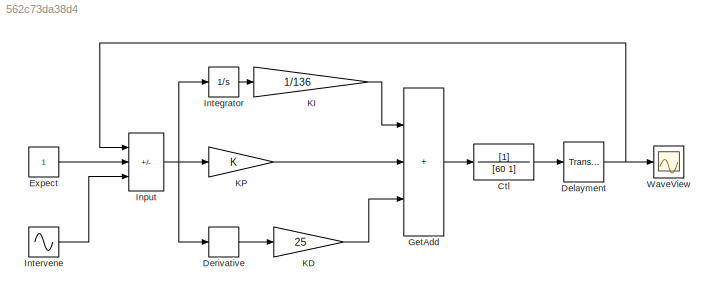
MODEL slx_562c73da38d4
KIND model
CONFIG AbsTol = auto
CONFIG EnableMultiTasking = off
CONFIG FixedStep = auto
CONFIG MaxStep = auto
CONFIG MinStep = auto
CONFIG RelTol = 1e-3
CONFIG SampleTimeConstraint = Unconstrained
CONFIG SolverName = VariableStepAuto
CONFIG StartTime = 0.0
CONFIG StopTime = 2000
BLOCK [TransferFcn] Ctl
  Denominator = [60 1]
BLOCK [TransportDelay] Delayment
  DelayTime = 80
BLOCK [Derivative] Derivative
BLOCK [Constant] Expect
BLOCK [Sum] GetAdd
  IconShape = rectangular
  Inputs = +++
BLOCK [Sum] Input
  IconShape = rectangular
  Inputs = -++
BLOCK [Integrator] Integrator
BLOCK [Sin] Intervene
  Amplitude = 0.05
  Frequency = 500
  SampleTime = 0
BLOCK [Gain] KD
  Gain = 25
BLOCK [Gain] KI
  Gain = 1/136
BLOCK [Gain] KP
BLOCK [Scope] WaveView
  Floating = off
  NumInputPorts = 1
  ScopeSpecificationString = Simulink.scopes.TimeScopeBlockCfg('CurrentConfiguration', extmgr.ConfigurationSet(extmgr.Configuration('Core','General UI',true),extmgr.Configuration('Core','Source UI',true),extmgr.Configuration('Sources','WiredSimulink',true),extmgr.Configuration('Visuals','Time Domain',true,'SerializedDisplays',{struct('MinYLimReal','-0.10514','MaxYLimReal','1.73018','YLabelReal','','MinYLimMag','0.00000','MaxY...<+1402ch>
LINE Ctl:1 -> Delayment:1
NET Delayment:1 -> Input:1, WaveView:1
LINE Derivative:1 -> KD:1
LINE Expect:1 -> Input:2
LINE GetAdd:1 -> Ctl:1
NET Input:1 -> Derivative:1, Integrator:1, KP:1
LINE Integrator:1 -> KI:1
LINE Intervene:1 -> Input:3
LINE KD:1 -> GetAdd:3
LINE KI:1 -> GetAdd:1
LINE KP:1 -> GetAdd:2
note: NET lines group one-source signal fan-out (src -> all destinations, sorted); 1:1 wires keep LINE
